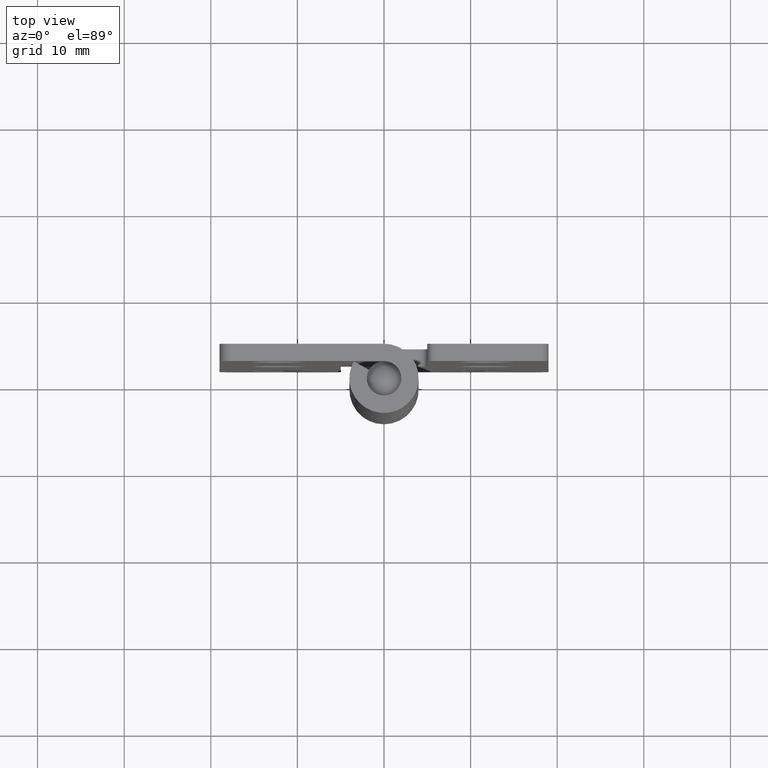
[diagram: clean part render]
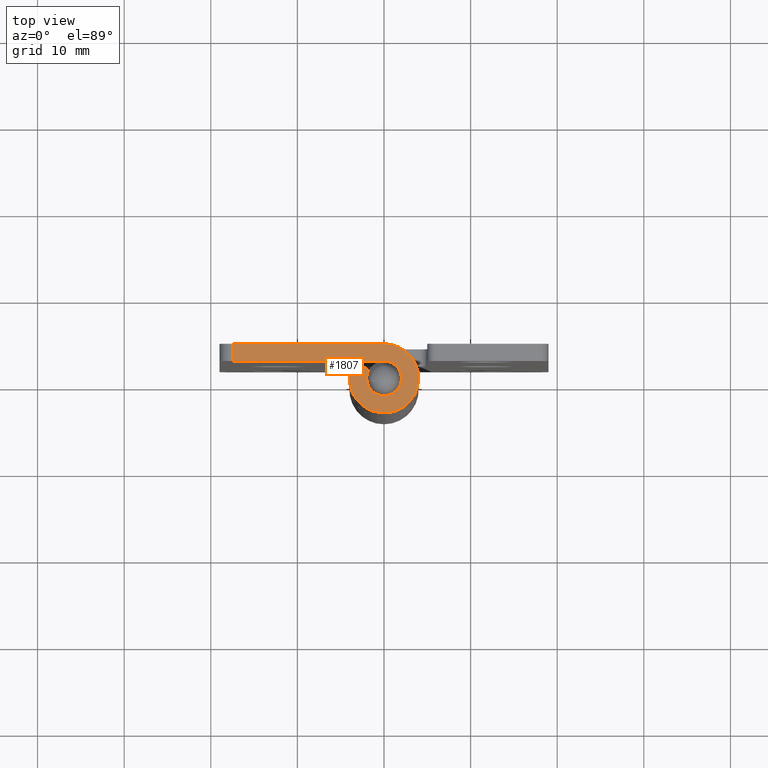
[diagram: same view with one face highlighted and labeled with its STEP entity id]
A machine part, top view. The second image highlights one B-rep face of the part: STEP entity #1807.
In plain terms, the highlighted face is a freeform B-spline surface patch.
Its self-contained STEP definition (entity closure, byte-faithful):
#1504=CARTESIAN_POINT('',(-17.500000000000000,2.0,75.0));
#1505=VERTEX_POINT('',#1504);
#1521=CARTESIAN_POINT('',(-17.500000000000000,4.0,75.0));
#1522=VERTEX_POINT('',#1521);
#1523=CARTESIAN_POINT('',(-17.500000000000000,4.0,75.0));
#1524=CARTESIAN_POINT('',(-17.500000000000000,2.0,75.0));
#1525=QUASI_UNIFORM_CURVE('',1,(#1523,#1524),.UNSPECIFIED.,.F.,.U.);
#1526=EDGE_CURVE('',#1522,#1505,#1525,.T.);
#1635=CARTESIAN_POINT('',(-1.746245973510035,0.975000000000000,75.0));
#1636=VERTEX_POINT('',#1635);
#1642=CARTESIAN_POINT('',(0.0,2.0,75.0));
#1643=VERTEX_POINT('',#1642);
#1644=CARTESIAN_POINT('',(0.0,2.0,75.0));
#1645=CARTESIAN_POINT('',(1.528952271725725,2.000000000000000,75.0));
#1646=CARTESIAN_POINT('',(1.929978971664208,0.524577133445566,75.0));
#1647=CARTESIAN_POINT('',(2.331005671602691,-0.950845733108869,75.0));
#1648=CARTESIAN_POINT('',(1.012422836565830,-1.724818831066034,75.0));
#1649=CARTESIAN_POINT('',(-0.306159998471030,-2.498791929023199,75.0));
#1650=CARTESIAN_POINT('',(-1.398885102223677,-1.429377651559116,75.0));
#1651=CARTESIAN_POINT('',(-2.491610205976323,-0.359963374095035,75.0));
#1652=CARTESIAN_POINT('',(-1.746245973510033,0.974999999999998,75.0));
#1660=(BOUNDED_CURVE()B_SPLINE_CURVE(2,(#1644,#1645,#1646,#1647,#1648,#1649,#1650,#1651,#1652),.UNSPECIFIED.,.F.,.U.)B_SPLINE_CURVE_WITH_KNOTS((3,2,2,2,3),(0.0,0.250000000000000,0.500000000000000,0.750000000000000,1.0),.UNSPECIFIED.)CURVE()GEOMETRIC_REPRESENTATION_ITEM()RATIONAL_B_SPLINE_CURVE((1.0,0.794445897063728,1.0,0.794445897063728,1.0,0.794445897063728,1.0,0.794445897063728,1.0))REPRESENTATION_ITEM(''));
#1661=EDGE_CURVE('',#1643,#1636,#1660,.T.);
#1693=CARTESIAN_POINT('',(-3.492491947020065,1.950000000000000,75.0));
#1694=VERTEX_POINT('',#1693);
#1701=CARTESIAN_POINT('',(-3.307792E-015,4.0,75.0));
#1702=VERTEX_POINT('',#1701);
#1708=CARTESIAN_POINT('',(0.0,4.0,75.0));
#1709=CARTESIAN_POINT('',(3.057904543451447,4.000000000000001,75.0));
#1710=CARTESIAN_POINT('',(3.859957943328415,1.049154266891135,75.0));
#1711=CARTESIAN_POINT('',(4.662011343205385,-1.901691466217736,75.0));
#1712=CARTESIAN_POINT('',(2.024845673131661,-3.449637662132068,75.0));
#1713=CARTESIAN_POINT('',(-0.612319996942061,-4.997583858046395,75.0));
#1714=CARTESIAN_POINT('',(-2.797770204447353,-2.858755303118233,75.0));
#1715=CARTESIAN_POINT('',(-4.983220411952646,-0.719926748190069,75.0));
#1716=CARTESIAN_POINT('',(-3.492491947020067,1.949999999999997,75.0));
#1724=(BOUNDED_CURVE()B_SPLINE_CURVE(2,(#1708,#1709,#1710,#1711,#1712,#1713,#1714,#1715,#1716),.UNSPECIFIED.,.F.,.U.)B_SPLINE_CURVE_WITH_KNOTS((3,2,2,2,3),(0.0,0.250000000000000,0.500000000000000,0.750000000000000,1.0),.UNSPECIFIED.)CURVE()GEOMETRIC_REPRESENTATION_ITEM()RATIONAL_B_SPLINE_CURVE((1.0,0.794445897063728,1.0,0.794445897063728,1.0,0.794445897063728,1.0,0.794445897063728,1.0))REPRESENTATION_ITEM(''));
#1725=EDGE_CURVE('',#1702,#1694,#1724,.T.);
#1737=CARTESIAN_POINT('',(-1.746245973510035,0.975000000000000,75.0));
#1738=CARTESIAN_POINT('',(-3.492491947020065,1.950000000000000,75.0));
#1739=QUASI_UNIFORM_CURVE('',1,(#1737,#1738),.UNSPECIFIED.,.F.,.U.);
#1740=EDGE_CURVE('',#1636,#1694,#1739,.T.);
#1786=CARTESIAN_POINT('',(-18.573923092902788,-4.399443773204150,75.0));
#1787=CARTESIAN_POINT('',(5.073886323708686,-4.399443773204150,75.0));
#1788=CARTESIAN_POINT('',(-18.573923092902788,4.399592767519329,75.0));
#1789=CARTESIAN_POINT('',(5.073886323708686,4.399592767519329,75.0));
#1790=B_SPLINE_SURFACE_WITH_KNOTS('',1,1,((#1786,#1788),(#1787,#1789)),.UNSPECIFIED.,.F.,.F.,.U.,(2,2),(2,2),(0.0,23.647809416611480),(0.0,8.799036540723479),.UNSPECIFIED.);
#1791=ORIENTED_EDGE('',*,*,#1526,.T.);
#1792=CARTESIAN_POINT('',(-17.500000000000000,2.0,75.0));
#1793=CARTESIAN_POINT('',(0.0,2.0,75.0));
#1794=QUASI_UNIFORM_CURVE('',1,(#1792,#1793),.UNSPECIFIED.,.F.,.U.);
#1795=EDGE_CURVE('',#1505,#1643,#1794,.T.);
#1796=ORIENTED_EDGE('',*,*,#1795,.T.);
#1797=ORIENTED_EDGE('',*,*,#1661,.T.);
#1798=ORIENTED_EDGE('',*,*,#1740,.T.);
#1799=ORIENTED_EDGE('',*,*,#1725,.F.);
#1800=CARTESIAN_POINT('',(-3.307792E-015,4.0,75.0));
#1801=CARTESIAN_POINT('',(-17.500000000000000,4.0,75.0));
#1802=QUASI_UNIFORM_CURVE('',1,(#1800,#1801),.UNSPECIFIED.,.F.,.U.);
#1803=EDGE_CURVE('',#1702,#1522,#1802,.T.);
#1804=ORIENTED_EDGE('',*,*,#1803,.T.);
#1805=EDGE_LOOP('',(#1791,#1796,#1797,#1798,#1799,#1804));
#1806=FACE_OUTER_BOUND('',#1805,.T.);
#1807=ADVANCED_FACE('',(#1806),#1790,.T.);